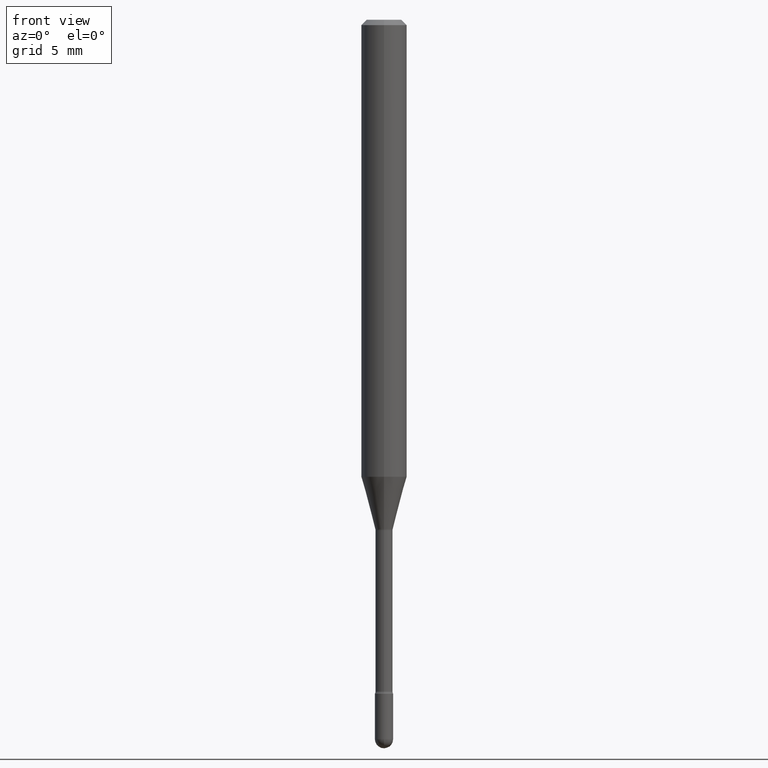
[diagram: clean part render]
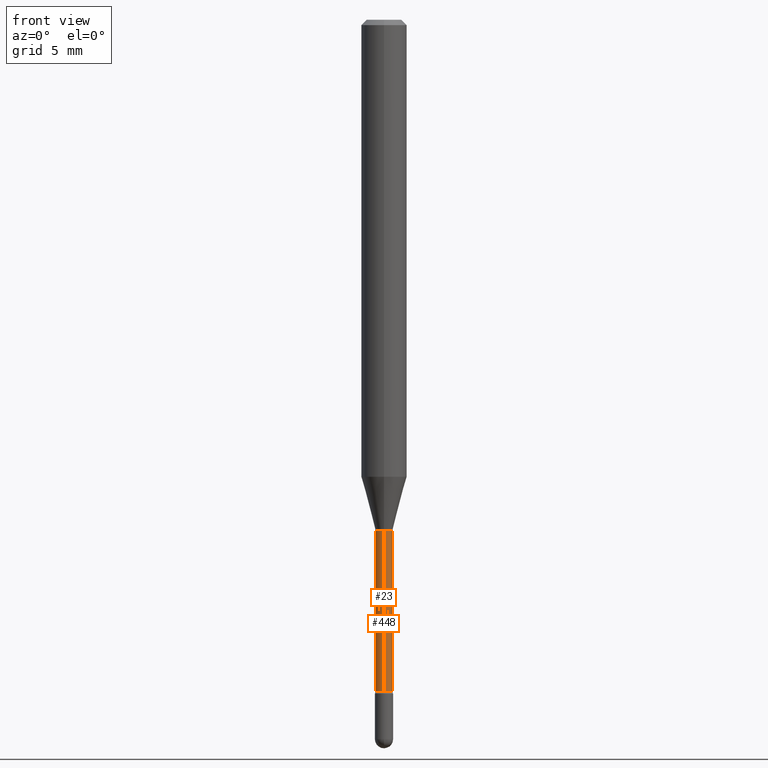
[diagram: same view with one multi-face feature highlighted, each face labeled with its STEP entity id]
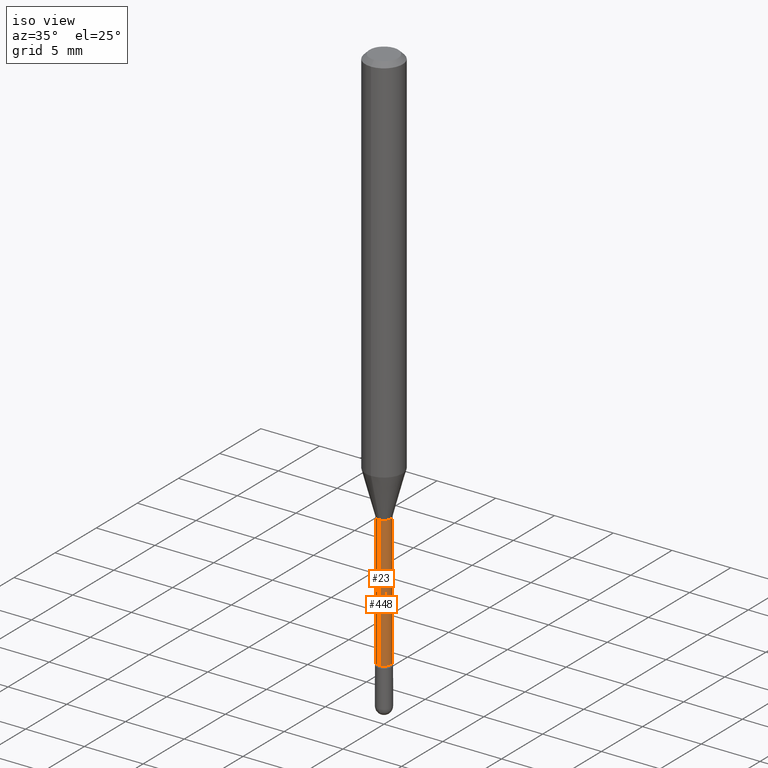
[diagram: same view with one multi-face feature highlighted, each face labeled with its STEP entity id]
A machine part, front view. The highlighted faces form ONE feature: a constant-radius fillet chain: 2 tangent blend faces with common blend radius 0.5969 mm. The faces share edges in the B-rep.
A second angle (iso view) of the same feature is appended — it is thin or edge-on in the first view.
Their STEP definitions:
[1] entity #23 (Cylinder):
#10 = CARTESIAN_POINT ( 'NONE',  ( -1.640996229256275231E-16, -0.02350000000000003475, 5.601221592985818843E-16 ) ) ;
#23 = ADVANCED_FACE ( 'NONE', ( #389 ), #566, .T. ) ;
#42 = LINE ( 'NONE', #10, #124 ) ;
#73 = ORIENTED_EDGE ( 'NONE', *, *, #255, .T. ) ;
#101 = DIRECTION ( 'NONE',  ( -2.445500038019932902E-29, 3.491436613078111990E-15, 1.000000000000000000 ) ) ;
#108 = VERTEX_POINT ( 'NONE', #435 ) ;
#124 = VECTOR ( 'NONE', #101, 39.37007874015748143 ) ;
#146 = ORIENTED_EDGE ( 'NONE', *, *, #153, .T. ) ;
#147 = CARTESIAN_POINT ( 'NONE',  ( -1.640996229255826813E-16, -0.02350000000000651221, -1.843461651584689109 ) ) ;
#151 = LINE ( 'NONE', #319, #425 ) ;
#153 = EDGE_CURVE ( 'NONE', #401, #246, #538, .T. ) ;
#188 = DIRECTION ( 'NONE',  ( -2.445500038019932902E-29, 3.491436613078111990E-15, 1.000000000000000000 ) ) ;
#199 = DIRECTION ( 'NONE',  ( -2.445500038019932902E-29, 3.491436613078111990E-15, 1.000000000000000000 ) ) ;
#200 = EDGE_CURVE ( 'NONE', #405, #108, #254, .T. ) ;
#231 = CARTESIAN_POINT ( 'NONE',  ( -1.169113584055446105E-44, 1.669184350826100908E-30, 4.780733988912460139E-16 ) ) ;
#237 = AXIS2_PLACEMENT_3D ( 'NONE', #231, #188, #535 ) ;
#240 = DIRECTION ( 'NONE',  ( -2.445500038019932902E-29, 3.491436613078111990E-15, 1.000000000000000000 ) ) ;
#246 = VERTEX_POINT ( 'NONE', #147 ) ;
#254 = CIRCLE ( 'NONE', #560, 0.02350000000000000352 ) ;
#255 = EDGE_CURVE ( 'NONE', #246, #108, #42, .T. ) ;
#319 = CARTESIAN_POINT ( 'NONE',  ( 1.669775429036237659E-16, 0.02350000000000003475, 3.960246384839102914E-16 ) ) ;
#323 = CARTESIAN_POINT ( 'NONE',  ( 1.669775429036688050E-16, 0.02349999999999510467, -1.401974787463811101 ) ) ;
#329 = ORIENTED_EDGE ( 'NONE', *, *, #200, .F. ) ;
#341 = AXIS2_PLACEMENT_3D ( 'NONE', #520, #427, #477 ) ;
#386 = EDGE_CURVE ( 'NONE', #401, #405, #151, .T. ) ;
#389 = FACE_OUTER_BOUND ( 'NONE', #495, .T. ) ;
#401 = VERTEX_POINT ( 'NONE', #539 ) ;
#405 = VERTEX_POINT ( 'NONE', #323 ) ;
#425 = VECTOR ( 'NONE', #199, 39.37007874015748143 ) ;
#427 = DIRECTION ( 'NONE',  ( -2.445500038019932902E-29, 3.491436613078111990E-15, 1.000000000000000000 ) ) ;
#435 = CARTESIAN_POINT ( 'NONE',  ( -1.640996229255930104E-16, -0.02350000000000489891, -1.401974787463811101 ) ) ;
#458 = ORIENTED_EDGE ( 'NONE', *, *, #386, .F. ) ;
#477 = DIRECTION ( 'NONE',  ( -6.982962677686266711E-15, -1.000000000000000000, 0.000000000000000000 ) ) ;
#480 = DIRECTION ( 'NONE',  ( -6.982962677686265922E-15, -1.000000000000000000, 0.000000000000000000 ) ) ;
#495 = EDGE_LOOP ( 'NONE', ( #458, #146, #73, #329 ) ) ;
#520 = CARTESIAN_POINT ( 'NONE',  ( 4.508185539038644929E-29, -6.436329505148228833E-15, -1.843461651584689109 ) ) ;
#535 = DIRECTION ( 'NONE',  ( -6.982962677686267499E-15, -1.000000000000000000, 3.491436613078113174E-15 ) ) ;
#538 = CIRCLE ( 'NONE', #341, 0.02350000000000007291 ) ;
#539 = CARTESIAN_POINT ( 'NONE',  ( 1.723066134218696351E-16, 0.02349999999999363709, -1.843461651584689109 ) ) ;
#551 = CARTESIAN_POINT ( 'NONE',  ( 3.428529396045737375E-29, -4.894906103563554113E-15, -1.401974787463811101 ) ) ;
#560 = AXIS2_PLACEMENT_3D ( 'NONE', #551, #240, #480 ) ;
#566 = CYLINDRICAL_SURFACE ( 'NONE', #237, 0.02350000000000003475 ) ;
[2] entity #448 (Cylinder):
#9 = CIRCLE ( 'NONE', #531, 0.02350000000000007291 ) ;
#10 = CARTESIAN_POINT ( 'NONE',  ( -1.640996229256275231E-16, -0.02350000000000003475, 5.601221592985818843E-16 ) ) ;
#19 = CARTESIAN_POINT ( 'NONE',  ( -1.169113584055446105E-44, 1.669184350826100908E-30, 4.780733988912460139E-16 ) ) ;
#42 = LINE ( 'NONE', #10, #124 ) ;
#66 = ORIENTED_EDGE ( 'NONE', *, *, #255, .F. ) ;
#86 = EDGE_CURVE ( 'NONE', #108, #405, #269, .T. ) ;
#101 = DIRECTION ( 'NONE',  ( -2.445500038019932902E-29, 3.491436613078111990E-15, 1.000000000000000000 ) ) ;
#102 = CYLINDRICAL_SURFACE ( 'NONE', #563, 0.02350000000000003475 ) ;
#108 = VERTEX_POINT ( 'NONE', #435 ) ;
#124 = VECTOR ( 'NONE', #101, 39.37007874015748143 ) ;
#147 = CARTESIAN_POINT ( 'NONE',  ( -1.640996229255826813E-16, -0.02350000000000651221, -1.843461651584689109 ) ) ;
#151 = LINE ( 'NONE', #319, #425 ) ;
#196 = ORIENTED_EDGE ( 'NONE', *, *, #386, .T. ) ;
#199 = DIRECTION ( 'NONE',  ( -2.445500038019932902E-29, 3.491436613078111990E-15, 1.000000000000000000 ) ) ;
#207 = ORIENTED_EDGE ( 'NONE', *, *, #234, .T. ) ;
#234 = EDGE_CURVE ( 'NONE', #246, #401, #9, .T. ) ;
#246 = VERTEX_POINT ( 'NONE', #147 ) ;
#255 = EDGE_CURVE ( 'NONE', #246, #108, #42, .T. ) ;
#265 = DIRECTION ( 'NONE',  ( -6.982962677686265922E-15, -1.000000000000000000, 0.000000000000000000 ) ) ;
#269 = CIRCLE ( 'NONE', #337, 0.02350000000000000352 ) ;
#280 = DIRECTION ( 'NONE',  ( -2.445500038019932902E-29, 3.491436613078111990E-15, 1.000000000000000000 ) ) ;
#303 = EDGE_LOOP ( 'NONE', ( #207, #196, #488, #66 ) ) ;
#319 = CARTESIAN_POINT ( 'NONE',  ( 1.669775429036237659E-16, 0.02350000000000003475, 3.960246384839102914E-16 ) ) ;
#323 = CARTESIAN_POINT ( 'NONE',  ( 1.669775429036688050E-16, 0.02349999999999510467, -1.401974787463811101 ) ) ;
#337 = AXIS2_PLACEMENT_3D ( 'NONE', #441, #280, #265 ) ;
#386 = EDGE_CURVE ( 'NONE', #401, #405, #151, .T. ) ;
#398 = CARTESIAN_POINT ( 'NONE',  ( 4.508185539038644929E-29, -6.436329505148228833E-15, -1.843461651584689109 ) ) ;
#401 = VERTEX_POINT ( 'NONE', #539 ) ;
#404 = DIRECTION ( 'NONE',  ( -2.445500038019932902E-29, 3.491436613078111990E-15, 1.000000000000000000 ) ) ;
#405 = VERTEX_POINT ( 'NONE', #323 ) ;
#418 = DIRECTION ( 'NONE',  ( -6.982962677686267499E-15, -1.000000000000000000, 3.491436613078113174E-15 ) ) ;
#425 = VECTOR ( 'NONE', #199, 39.37007874015748143 ) ;
#435 = CARTESIAN_POINT ( 'NONE',  ( -1.640996229255930104E-16, -0.02350000000000489891, -1.401974787463811101 ) ) ;
#441 = CARTESIAN_POINT ( 'NONE',  ( 3.428529396045737375E-29, -4.894906103563554113E-15, -1.401974787463811101 ) ) ;
#448 = ADVANCED_FACE ( 'NONE', ( #460 ), #102, .T. ) ;
#460 = FACE_OUTER_BOUND ( 'NONE', #303, .T. ) ;
#488 = ORIENTED_EDGE ( 'NONE', *, *, #86, .F. ) ;
#531 = AXIS2_PLACEMENT_3D ( 'NONE', #398, #404, #533 ) ;
#533 = DIRECTION ( 'NONE',  ( -6.982962677686266711E-15, -1.000000000000000000, 0.000000000000000000 ) ) ;
#539 = CARTESIAN_POINT ( 'NONE',  ( 1.723066134218696351E-16, 0.02349999999999363709, -1.843461651584689109 ) ) ;
#541 = DIRECTION ( 'NONE',  ( -2.445500038019932902E-29, 3.491436613078111990E-15, 1.000000000000000000 ) ) ;
#563 = AXIS2_PLACEMENT_3D ( 'NONE', #19, #541, #418 ) ;